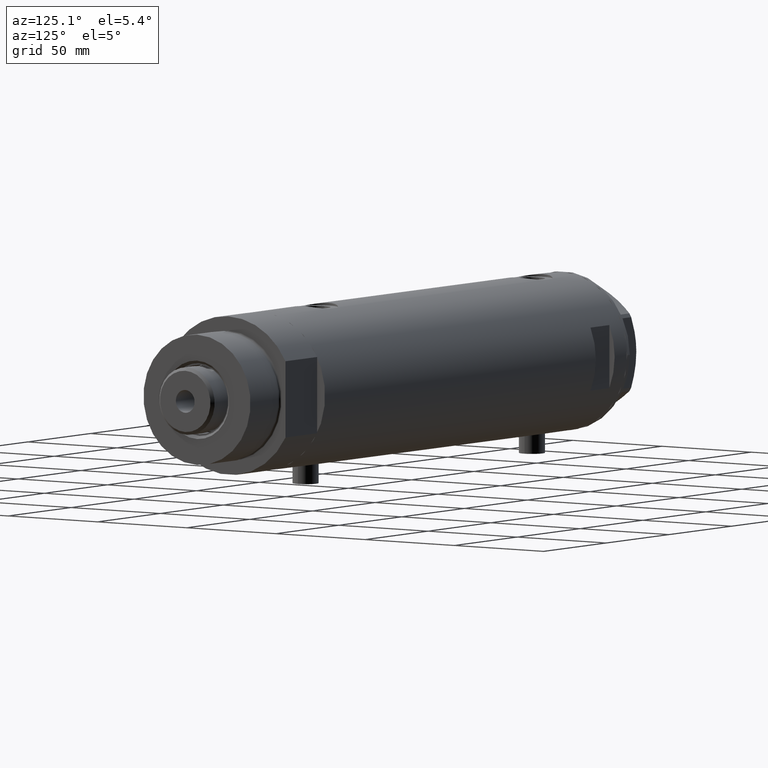
[diagram: clean part render]
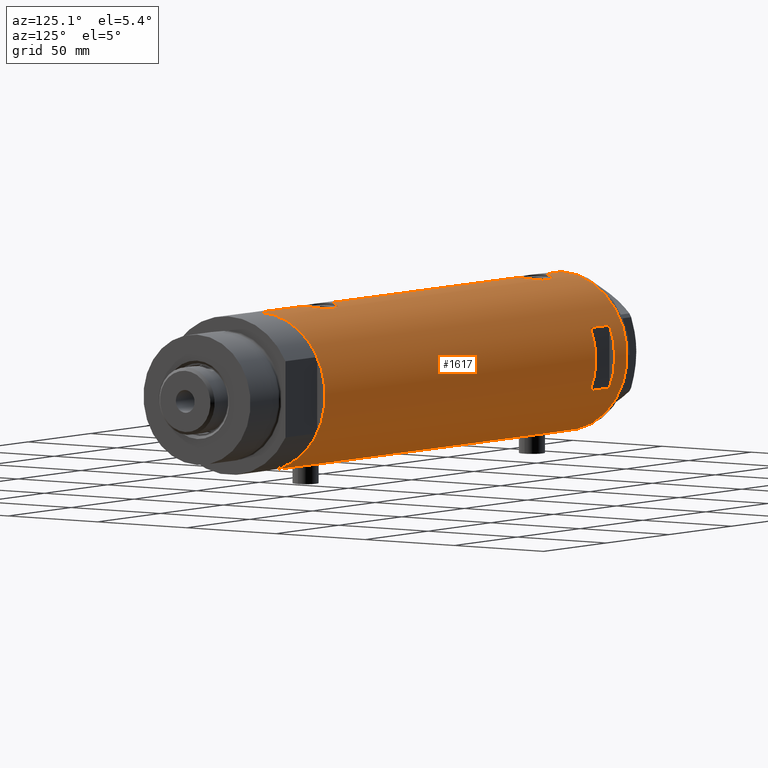
[diagram: same view with one face highlighted and labeled with its STEP entity id]
A machine part, auxiliary view. The second image highlights one B-rep face of the part: STEP entity #1617.
In plain terms, the highlighted cylindrical surface (partial cylindrical patch) has radius 36.5 mm, axis along (-1, -0, 0).
Its self-contained STEP definition (entity closure, byte-faithful):
#4 = CARTESIAN_POINT ( 'NONE',  ( 36.41717583764486932, 2.469534783404761402, 105.0934801117567190 ) ) ;
#6 = CARTESIAN_POINT ( 'NONE',  ( 36.18948008481302026, 4.772042575486208804, -84.40177631243157919 ) ) ;
#7 = CARTESIAN_POINT ( 'NONE',  ( 36.45853166336080875, 1.985123042546145022, 85.54837329582265681 ) ) ;
#16 = EDGE_CURVE ( 'NONE', #847, #2905, #1963, .T. ) ;
#18 = CARTESIAN_POINT ( 'NONE',  ( -35.99700617875953412, 6.038972911021586398, 98.02333185798320869 ) ) ;
#40 = VECTOR ( 'NONE', #2554, 1000.000000000000000 ) ;
#70 = CARTESIAN_POINT ( 'NONE',  ( -35.96088929326157313, 6.250155299092687855, 95.99389505236757714 ) ) ;
#73 = FACE_OUTER_BOUND ( 'NONE', #1222, .T. ) ;
#82 = CARTESIAN_POINT ( 'NONE',  ( 35.79766710091575987, 7.135341284989891619, 88.37649479439097888 ) ) ;
#100 = CARTESIAN_POINT ( 'NONE',  ( 36.34070350304396868, 3.414301401755543974, 85.99763782624094688 ) ) ;
#122 = CARTESIAN_POINT ( 'NONE',  ( -35.96094343308265451, 6.249843792257633091, -83.68912889655432252 ) ) ;
#136 = DIRECTION ( 'NONE',  ( 0.000000000000000000, 0.000000000000000000, 1.000000000000000000 ) ) ;
#140 = ORIENTED_EDGE ( 'NONE', *, *, #2586, .T. ) ;
#150 = CARTESIAN_POINT ( 'NONE',  ( -36.01679413914729366, 5.919813138266330377, -82.08500308952964986 ) ) ;
#172 = DIRECTION ( 'NONE',  ( 0.000000000000000000, 1.000000000000000000, -4.562560375171875891E-15 ) ) ;
#177 = VERTEX_POINT ( 'NONE', #1307 ) ;
#178 = CARTESIAN_POINT ( 'NONE',  ( 0.000000000000000000, 0.000000000000000000, 120.4000000000000057 ) ) ;
#182 = VERTEX_POINT ( 'NONE', #3039 ) ;
#251 = CARTESIAN_POINT ( 'NONE',  ( 35.29999999999999716, 9.282241108697837362, -79.32021504754763441 ) ) ;
#284 = CARTESIAN_POINT ( 'NONE',  ( 36.49999999999999289, 0.4961820988516178477, -65.59999999999999432 ) ) ;
#310 = CARTESIAN_POINT ( 'NONE',  ( 35.72794581931695745, 7.469526493268205058, -68.94660203271739363 ) ) ;
#316 = CARTESIAN_POINT ( 'NONE',  ( 35.29999999999999716, 9.282241108697837362, -71.87978495245236843 ) ) ;
#324 = EDGE_CURVE ( 'NONE', #177, #1946, #3851, .T. ) ;
#334 = CARTESIAN_POINT ( 'NONE',  ( -36.30200038006936580, 3.811959488093743520, 101.3697210483601197 ) ) ;
#357 = CARTESIAN_POINT ( 'NONE',  ( -36.50000000000000000, 1.603939656238031057E-15, 102.6500000000000199 ) ) ;
#367 = LINE ( 'NONE', #3589, #3349 ) ;
#387 = CARTESIAN_POINT ( 'NONE',  ( 36.34070350304396868, 3.414301401755543974, -85.00236217375905312 ) ) ;
#398 = CARTESIAN_POINT ( 'NONE',  ( -36.40902375114221456, 2.582415566883930591, 90.70478308530314848 ) ) ;
#468 = DIRECTION ( 'NONE',  ( 1.000000000000000000, 0.000000000000000000, 0.000000000000000000 ) ) ;
#479 = CARTESIAN_POINT ( 'NONE',  ( -36.01524716445113938, 5.931039972055515364, -86.11330731864657650 ) ) ;
#493 = CARTESIAN_POINT ( 'NONE',  ( 0.000000000000000000, 0.000000000000000000, -120.4000000000000057 ) ) ;
#532 = CARTESIAN_POINT ( 'NONE',  ( -36.44628644024909647, 2.015372769639941275, -90.03028128013588116 ) ) ;
#555 = CARTESIAN_POINT ( 'NONE',  ( -36.30181775639987052, 3.813582387016785091, -89.06836057574435017 ) ) ;
#595 = CARTESIAN_POINT ( 'NONE',  ( 35.39804469700249001, 8.909380959553011792, -70.94946835517158945 ) ) ;
#616 = CARTESIAN_POINT ( 'NONE',  ( 36.18937351723702278, 4.773052864917646687, -66.79864006881156513 ) ) ;
#643 = CARTESIAN_POINT ( 'NONE',  ( 36.50000000000000000, 0.000000000000000000, 120.4000000000000057 ) ) ;
#668 = AXIS2_PLACEMENT_3D ( 'NONE', #962, #1333, #172 ) ;
#672 = VECTOR ( 'NONE', #1323, 1000.000000000000000 ) ;
#678 = VERTEX_POINT ( 'NONE', #2313 ) ;
#689 = CARTESIAN_POINT ( 'NONE',  ( -36.50000000000000000, 0.4137727629436737664, 102.6500000000000057 ) ) ;
#705 = VECTOR ( 'NONE', #1695, 1000.000000000000000 ) ;
#707 = CARTESIAN_POINT ( 'NONE',  ( -36.05296344941216091, 5.695624845616832133, 93.81845143463246472 ) ) ;
#718 = VECTOR ( 'NONE', #3251, 1000.000000000000000 ) ;
#724 = CARTESIAN_POINT ( 'NONE',  ( 36.50000000000000000, 0.000000000000000000, -85.59999999999999432 ) ) ;
#733 = CARTESIAN_POINT ( 'NONE',  ( -36.47290054070997201, 1.420408912806973678, 102.4898698166001623 ) ) ;
#738 = LINE ( 'NONE', #2564, #1984 ) ;
#750 = CARTESIAN_POINT ( 'NONE',  ( 35.59366931936805400, 8.089554397885871495, 89.50072680912188616 ) ) ;
#758 = CARTESIAN_POINT ( 'NONE',  ( -36.43371204571226230, 2.206934156026287841, 102.2509728167099752 ) ) ;
#779 = CARTESIAN_POINT ( 'NONE',  ( -35.98846897517730525, 6.089479646546502423, 97.82234891546525546 ) ) ;
#783 = CARTESIAN_POINT ( 'NONE',  ( 0.000000000000000000, 0.000000000000000000, -120.4000000000000057 ) ) ;
#784 = CARTESIAN_POINT ( 'NONE',  ( -36.50000000000000000, 0.4137727629436737664, -77.84999999999999432 ) ) ;
#802 = EDGE_CURVE ( 'NONE', #1946, #1532, #3210, .T. ) ;
#807 = EDGE_CURVE ( 'NONE', #3520, #4523, #2335, .T. ) ;
#811 = AXIS2_PLACEMENT_3D ( 'NONE', #783, #2999, #2608 ) ;
#814 = ORIENTED_EDGE ( 'NONE', *, *, #2968, .F. ) ;
#820 = CARTESIAN_POINT ( 'NONE',  ( -36.50000000000000000, 4.469960493350315609E-15, 90.15000000000000568 ) ) ;
#835 = CARTESIAN_POINT ( 'NONE',  ( -36.11199073531170001, 5.309184630646994307, -80.79587159233167881 ) ) ;
#847 = VERTEX_POINT ( 'NONE', #1021 ) ;
#861 = CARTESIAN_POINT ( 'NONE',  ( -36.46598788992680085, 1.625721481788714895, -90.14872046713837506 ) ) ;
#889 = CARTESIAN_POINT ( 'NONE',  ( -36.30200038006936580, 3.811959488093743520, -79.13027895163997982 ) ) ;
#935 = B_SPLINE_CURVE_WITH_KNOTS ( 'NONE', 3,
 ( #4105, #784, #2272, #2323, #3174, #1597, #4208, #4161, #4629, #889, #3430, #1699, #1202, #835, #938, #3878, #2013, #150, #3486, #3508, #1310, #122, #2686, #3072, #3798, #479, #1958, #4552, #1230, #4184, #4574, #3901, #3120, #555, #2376, #2709, #2426, #3098, #532, #861, #2786, #1623, #4238 ),
 .UNSPECIFIED., .F., .F.,
 ( 4, 2, 2, 2, 2, 2, 2, 2, 1, 2, 2, 2, 2, 2, 2, 2, 2, 2, 2, 2, 2, 4 ),
 ( 1.558294008431693624E-18, 0.001223527801214140684, 0.001835291701821213954, 0.002447055602428288307, 0.003670583403642434413, 0.004894111204856580084, 0.006117639006070725756, 0.006729402906677815072, 0.007341166807284903520, 0.007952930707891993703, 0.008564694608499082151, 0.009788222409713260783, 0.01101175021092743941, 0.01223527801214161631, 0.01284704191274868568, 0.01345880581335575504, 0.01468233361456989725, 0.01590586141578403945, 0.01651762531639110881, 0.01712938921699818165, 0.01835291701821230650, 0.01957644481942643136 ),
 .UNSPECIFIED. ) ;
#938 = CARTESIAN_POINT ( 'NONE',  ( -36.09617453667821252, 5.415318599347967776, -80.97293357327090746 ) ) ;
#942 = EDGE_LOOP ( 'NONE', ( #2305, #2457, #3803, #1172 ) ) ;
#952 = CARTESIAN_POINT ( 'NONE',  ( 35.29999999999999716, 9.282241108697837362, -71.87978495245236843 ) ) ;
#962 = CARTESIAN_POINT ( 'NONE',  ( 0.000000000000000000, 0.000000000000000000, 95.40000000000014779 ) ) ;
#1004 = B_SPLINE_CURVE_WITH_KNOTS ( 'NONE', 3,
 ( #724, #2210, #2146, #1415, #387, #3689, #1847, #6, #1827, #2954, #4428, #1783, #1113, #1868, #1503, #2983, #4457, #2887 ),
 .UNSPECIFIED., .F., .F.,
 ( 4, 2, 2, 2, 2, 2, 2, 2, 4 ),
 ( 1.734723475976807094E-18, 0.002973648994175672518, 0.003717061242719596394, 0.004460473491263520704, 0.005947297988351386670, 0.007434122485439251769, 0.008920946982527117736, 0.01040777147961498283, 0.01189459597670284793 ),
 .UNSPECIFIED. ) ;
#1010 = CARTESIAN_POINT ( 'NONE',  ( 36.50000000000000000, 0.000000000000000000, -120.4000000000000057 ) ) ;
#1021 = CARTESIAN_POINT ( 'NONE',  ( -36.50000000000000000, 1.603939656238031057E-15, 102.6500000000000199 ) ) ;
#1077 = CARTESIAN_POINT ( 'NONE',  ( 36.50000000000000000, 0.000000000000000000, -120.4000000000000057 ) ) ;
#1088 = CARTESIAN_POINT ( 'NONE',  ( 36.29611582693038940, 3.878758190381173421, 104.6304498909955072 ) ) ;
#1096 = CARTESIAN_POINT ( 'NONE',  ( -36.11199073531170001, 5.309184630646994307, 99.70412840766836382 ) ) ;
#1097 = EDGE_CURVE ( 'NONE', #678, #1453, #1004, .T. ) ;
#1113 = CARTESIAN_POINT ( 'NONE',  ( 35.72860827204725354, 7.471059959301281417, -82.26525150474411419 ) ) ;
#1124 = CARTESIAN_POINT ( 'NONE',  ( -36.16083474549355259, 4.969527450313384165, 92.58794680877254279 ) ) ;
#1139 = CARTESIAN_POINT ( 'NONE',  ( 35.72860827204725354, 7.471059959301281417, 88.73474849525594266 ) ) ;
#1169 = CARTESIAN_POINT ( 'NONE',  ( -36.35033317675380005, 3.306376218664579536, 91.09229280583950583 ) ) ;
#1172 = ORIENTED_EDGE ( 'NONE', *, *, #324, .F. ) ;
#1202 = CARTESIAN_POINT ( 'NONE',  ( -36.16126303108062956, 4.966520032693302333, -80.28358772254716769 ) ) ;
#1222 = EDGE_LOOP ( 'NONE', ( #140, #1647, #1970, #4274, #1348, #2159, #4466, #4021, #1801, #4530, #814, #3866, #4079, #4479, #4146, #2289 ) ) ;
#1230 = CARTESIAN_POINT ( 'NONE',  ( -36.09643313249890184, 5.413601294342275771, -87.23007773391852027 ) ) ;
#1254 = CIRCLE ( 'NONE', #1807, 36.50000000000000000 ) ;
#1307 = CARTESIAN_POINT ( 'NONE',  ( -14.49137674618942739, 33.50000000000000000, 110.3999999999999915 ) ) ;
#1310 = CARTESIAN_POINT ( 'NONE',  ( -35.96793274302675059, 6.210029014836887740, -83.28305762320685801 ) ) ;
#1323 = DIRECTION ( 'NONE',  ( -0.000000000000000000, -0.000000000000000000, -1.000000000000000000 ) ) ;
#1333 = DIRECTION ( 'NONE',  ( 0.000000000000000000, 4.625929269271492422E-15, 1.000000000000000000 ) ) ;
#1337 = DIRECTION ( 'NONE',  ( 0.000000000000000000, 0.000000000000000000, 1.000000000000000000 ) ) ;
#1348 = ORIENTED_EDGE ( 'NONE', *, *, #16, .F. ) ;
#1367 = CARTESIAN_POINT ( 'NONE',  ( -14.49137674618942739, 33.50000000000000000, -120.4000000000000057 ) ) ;
#1410 = CARTESIAN_POINT ( 'NONE',  ( 36.50000000000000000, 4.344614706140975428E-19, 105.4000000000000057 ) ) ;
#1414 = EDGE_CURVE ( 'NONE', #2470, #3387, #2455, .T. ) ;
#1415 = CARTESIAN_POINT ( 'NONE',  ( 36.36225053217120973, 3.177096004138049601, -85.08516024475976280 ) ) ;
#1437 = CARTESIAN_POINT ( 'NONE',  ( 35.52347503888660896, 8.410566959990466884, 100.8995396725934057 ) ) ;
#1447 = LINE ( 'NONE', #1077, #40 ) ;
#1450 = CARTESIAN_POINT ( 'NONE',  ( -35.96793274302675059, 6.210029014836887740, 97.21694237679319883 ) ) ;
#1453 = VERTEX_POINT ( 'NONE', #251 ) ;
#1466 = CARTESIAN_POINT ( 'NONE',  ( -36.49292802938585822, 0.8230716655928924652, 90.19093061246485377 ) ) ;
#1478 = CARTESIAN_POINT ( 'NONE',  ( 36.00287854058830561, 6.017835360302999703, 87.39811882818277411 ) ) ;
#1483 = VECTOR ( 'NONE', #136, 1000.000000000000000 ) ;
#1488 = CARTESIAN_POINT ( 'NONE',  ( -35.96805604460922723, 6.209309709790234777, 95.57887241731832262 ) ) ;
#1503 = CARTESIAN_POINT ( 'NONE',  ( 35.52737867031126484, 8.373910777960906771, -81.08860356717065088 ) ) ;
#1517 = B_SPLINE_CURVE_WITH_KNOTS ( 'NONE', 3,
 ( #1534, #4142, #7, #3411, #100, #3808, #2594, #3008, #4112, #1478, #2254, #82, #1139, #750, #1577, #2638, #3055, #2234 ),
 .UNSPECIFIED., .F., .F.,
 ( 4, 2, 2, 2, 2, 2, 2, 2, 4 ),
 ( 1.734723475976807094E-18, 0.002973648994175672518, 0.003717061242719596394, 0.004460473491263520704, 0.005947297988351386670, 0.007434122485439251769, 0.008920946982527117736, 0.01040777147961498283, 0.01189459597670284793 ),
 .UNSPECIFIED. ) ;
#1532 = VERTEX_POINT ( 'NONE', #3655 ) ;
#1534 = CARTESIAN_POINT ( 'NONE',  ( 36.50000000000000000, 0.000000000000000000, 85.40000000000001990 ) ) ;
#1543 = CARTESIAN_POINT ( 'NONE',  ( -36.09643313249890184, 5.413601294342275771, 93.26992226608146552 ) ) ;
#1558 = EDGE_CURVE ( 'NONE', #2668, #2905, #738, .T. ) ;
#1577 = CARTESIAN_POINT ( 'NONE',  ( 35.52737867031126484, 8.373910777960906771, 89.91139643282933491 ) ) ;
#1583 = CARTESIAN_POINT ( 'NONE',  ( -36.50000000000000000, 4.469960816887838430E-15, -120.4000000000000057 ) ) ;
#1597 = CARTESIAN_POINT ( 'NONE',  ( -36.44504802628534179, 2.011764947064737630, -78.17906355091480464 ) ) ;
#1617 = ADVANCED_FACE ( 'NONE', ( #2655, #73 ), #1957, .T. ) ;
#1623 = CARTESIAN_POINT ( 'NONE',  ( -36.49999999999999289, 0.4083036190459308212, -90.34999999999998010 ) ) ;
#1647 = ORIENTED_EDGE ( 'NONE', *, *, #3331, .T. ) ;
#1651 = CARTESIAN_POINT ( 'NONE',  ( 14.49137674618942739, 33.50000000000000000, 110.3999999999999915 ) ) ;
#1688 = CARTESIAN_POINT ( 'NONE',  ( 36.40008489419980720, 2.709263960908029123, -65.97081895403607632 ) ) ;
#1695 = DIRECTION ( 'NONE',  ( 0.000000000000000000, 0.000000000000000000, 1.000000000000000000 ) ) ;
#1699 = CARTESIAN_POINT ( 'NONE',  ( -36.19624103943463922, 4.708090268046848159, -79.96938778553864324 ) ) ;
#1754 = CARTESIAN_POINT ( 'NONE',  ( 35.29999999999999716, 9.282241108697837362, -120.4000000000000057 ) ) ;
#1766 = AXIS2_PLACEMENT_3D ( 'NONE', #4695, #4330, #2623 ) ;
#1772 = EDGE_CURVE ( 'NONE', #1532, #182, #2598, .T. ) ;
#1783 = CARTESIAN_POINT ( 'NONE',  ( 35.79766710091575987, 7.135341284989891619, -82.62350520560903533 ) ) ;
#1785 = CARTESIAN_POINT ( 'NONE',  ( 35.79715675463678792, 7.130463293899340194, -68.58444415894004464 ) ) ;
#1801 = ORIENTED_EDGE ( 'NONE', *, *, #4752, .F. ) ;
#1807 = AXIS2_PLACEMENT_3D ( 'NONE', #493, #3032, #468 ) ;
#1827 = CARTESIAN_POINT ( 'NONE',  ( 36.13018480315372472, 5.199168368309159405, -84.15646498208049309 ) ) ;
#1837 = CARTESIAN_POINT ( 'NONE',  ( -36.06675137892952421, 5.607935153446978127, 99.16681826008760936 ) ) ;
#1846 = CARTESIAN_POINT ( 'NONE',  ( 36.18937351723702278, 4.773052864917646687, 104.2013599311884064 ) ) ;
#1847 = CARTESIAN_POINT ( 'NONE',  ( 36.26917563968160607, 4.104523505324181087, -84.72215988367473471 ) ) ;
#1857 = CARTESIAN_POINT ( 'NONE',  ( -36.49297130294515057, 0.8204796224394291793, 102.6093169221773564 ) ) ;
#1868 = CARTESIAN_POINT ( 'NONE',  ( 35.59366931936805400, 8.089554397885871495, -81.49927319087814226 ) ) ;
#1870 = CARTESIAN_POINT ( 'NONE',  ( 35.29999999999999716, 9.282241108697837362, 99.12021504754764578 ) ) ;
#1934 = CARTESIAN_POINT ( 'NONE',  ( -36.50000000000000000, 4.469960816887838430E-15, -120.4000000000000057 ) ) ;
#1946 = VERTEX_POINT ( 'NONE', #1651 ) ;
#1947 = LINE ( 'NONE', #1583, #1483 ) ;
#1957 = CYLINDRICAL_SURFACE ( 'NONE', #811, 36.50000000000000000 ) ;
#1958 = CARTESIAN_POINT ( 'NONE',  ( -36.05296344941216091, 5.695624845616832133, -86.68154856536754949 ) ) ;
#1963 = B_SPLINE_CURVE_WITH_KNOTS ( 'NONE', 3,
 ( #357, #689, #1857, #733, #2995, #2175, #758, #3378, #4057, #334, #3330, #2966, #3290, #1096, #3721, #1837, #4765, #3744, #18, #779, #1450, #2222, #70, #1488, #4399, #4443, #707, #2243, #1543, #2628, #1124, #3016, #3312, #4492, #1169, #2649, #2604, #398, #4440, #2923, #1466, #4468, #2942 ),
 .UNSPECIFIED., .F., .F.,
 ( 4, 2, 2, 2, 2, 2, 2, 2, 1, 2, 2, 2, 2, 2, 2, 2, 2, 2, 2, 2, 2, 4 ),
 ( 1.558294008431693624E-18, 0.001223527801214140684, 0.001835291701821213954, 0.002447055602428288307, 0.003670583403642434413, 0.004894111204856580084, 0.006117639006070725756, 0.006729402906677815072, 0.007341166807284903520, 0.007952930707891993703, 0.008564694608499082151, 0.009788222409713260783, 0.01101175021092743941, 0.01223527801214161631, 0.01284704191274868568, 0.01345880581335575504, 0.01468233361456989725, 0.01590586141578403945, 0.01651762531639110881, 0.01712938921699818165, 0.01835291701821230650, 0.01957644481942643136 ),
 .UNSPECIFIED. ) ;
#1970 = ORIENTED_EDGE ( 'NONE', *, *, #3414, .F. ) ;
#1984 = VECTOR ( 'NONE', #4040, 1000.000000000000000 ) ;
#2013 = CARTESIAN_POINT ( 'NONE',  ( -36.03936508729894683, 5.782103729777505308, -81.70129467396205314 ) ) ;
#2056 = VECTOR ( 'NONE', #3222, 1000.000000000000000 ) ;
#2146 = CARTESIAN_POINT ( 'NONE',  ( 36.45853166336080875, 1.985123042546145022, -85.45162670417735740 ) ) ;
#2149 = CARTESIAN_POINT ( 'NONE',  ( 35.93435287561198521, 6.411571491280768420, -67.91011355077158385 ) ) ;
#2159 = ORIENTED_EDGE ( 'NONE', *, *, #2588, .T. ) ;
#2165 = DIRECTION ( 'NONE',  ( 0.000000000000000000, 0.000000000000000000, 1.000000000000000000 ) ) ;
#2175 = CARTESIAN_POINT ( 'NONE',  ( -36.44504802628534179, 2.011764947064737630, 102.3209364490851954 ) ) ;
#2185 = CARTESIAN_POINT ( 'NONE',  ( 35.93435287561198521, 6.411571491280768420, 103.0898864492284304 ) ) ;
#2210 = CARTESIAN_POINT ( 'NONE',  ( 36.50000000000000711, 1.005842003469123336, -85.59999999999999432 ) ) ;
#2222 = CARTESIAN_POINT ( 'NONE',  ( -35.96094343308265451, 6.249843792257633091, 96.81087110344570590 ) ) ;
#2234 = CARTESIAN_POINT ( 'NONE',  ( 35.29999999999999716, 9.282241108697837362, 91.67978495245237980 ) ) ;
#2243 = CARTESIAN_POINT ( 'NONE',  ( -36.06690560274405044, 5.606949625760674571, 93.63114076041070177 ) ) ;
#2254 = CARTESIAN_POINT ( 'NONE',  ( 35.93456089024232369, 6.410413305453381838, 87.70914036795856816 ) ) ;
#2272 = CARTESIAN_POINT ( 'NONE',  ( -36.49297130294515057, 0.8204796224394291793, -77.89068307782268619 ) ) ;
#2289 = ORIENTED_EDGE ( 'NONE', *, *, #2423, .F. ) ;
#2305 = ORIENTED_EDGE ( 'NONE', *, *, #3132, .F. ) ;
#2313 = CARTESIAN_POINT ( 'NONE',  ( 36.50000000000000000, 0.000000000000000000, -85.59999999999999432 ) ) ;
#2323 = CARTESIAN_POINT ( 'NONE',  ( -36.47290054070997201, 1.420408912806973678, -78.01013018339985194 ) ) ;
#2335 = B_SPLINE_CURVE_WITH_KNOTS ( 'NONE', 3,
 ( #952, #595, #2849, #4327, #310, #1785, #3259, #2149, #4736, #3623, #616, #4270, #3938, #1688, #3235, #3184, #4248, #2499, #284, #4296 ),
 .UNSPECIFIED., .F., .F.,
 ( 4, 2, 2, 2, 2, 2, 2, 2, 2, 4 ),
 ( 0.000000000000000000, 0.002977391289382919342, 0.003721739111728640179, 0.004466086934074362316, 0.005954782578765775367, 0.007443478223457188417, 0.008932173868148601467, 0.009676521690494316666, 0.01042086951284003013, 0.01190956515753145012 ),
 .UNSPECIFIED. ) ;
#2376 = CARTESIAN_POINT ( 'NONE',  ( -36.35033317675380005, 3.306376218664579536, -89.40770719416052259 ) ) ;
#2423 = EDGE_CURVE ( 'NONE', #2489, #678, #4668, .T. ) ;
#2426 = CARTESIAN_POINT ( 'NONE',  ( -36.39522946636253664, 2.769519034821242176, -89.70663923731271439 ) ) ;
#2455 = CIRCLE ( 'NONE', #3450, 36.50000000000000000 ) ;
#2457 = ORIENTED_EDGE ( 'NONE', *, *, #1772, .F. ) ;
#2470 = VERTEX_POINT ( 'NONE', #643 ) ;
#2489 = VERTEX_POINT ( 'NONE', #2551 ) ;
#2499 = CARTESIAN_POINT ( 'NONE',  ( 36.48988646280794512, 0.9921857666168139023, -65.63671884865574668 ) ) ;
#2546 = CARTESIAN_POINT ( 'NONE',  ( 35.79715675463678792, 7.130463293899340194, 102.4155558410599696 ) ) ;
#2551 = CARTESIAN_POINT ( 'NONE',  ( 36.50000000000000000, 0.000000000000000000, -120.4000000000000057 ) ) ;
#2553 = B_SPLINE_CURVE_WITH_KNOTS ( 'NONE', 3,
 ( #4006, #3255, #1437, #2906, #4388, #2546, #4025, #2185, #4732, #3662, #1846, #1088, #2567, #3320, #4, #4109, #2690, #2613, #3708, #3388 ),
 .UNSPECIFIED., .F., .F.,
 ( 4, 2, 2, 2, 2, 2, 2, 2, 2, 4 ),
 ( 0.000000000000000000, 0.002977391289382919342, 0.003721739111728640179, 0.004466086934074362316, 0.005954782578765775367, 0.007443478223457188417, 0.008932173868148601467, 0.009676521690494316666, 0.01042086951284003013, 0.01190956515753145012 ),
 .UNSPECIFIED. ) ;
#2554 = DIRECTION ( 'NONE',  ( 0.000000000000000000, 0.000000000000000000, 1.000000000000000000 ) ) ;
#2564 = CARTESIAN_POINT ( 'NONE',  ( -36.50000000000000000, 4.469960816887838430E-15, -120.4000000000000057 ) ) ;
#2567 = CARTESIAN_POINT ( 'NONE',  ( 36.34264078466112124, 3.418717136061403927, 104.8104903404075543 ) ) ;
#2586 = EDGE_CURVE ( 'NONE', #2489, #3267, #1254, .T. ) ;
#2588 = EDGE_CURVE ( 'NONE', #847, #3387, #1947, .T. ) ;
#2594 = CARTESIAN_POINT ( 'NONE',  ( 36.26917563968160607, 4.104523505324181087, 86.27784011632525107 ) ) ;
#2598 = CIRCLE ( 'NONE', #668, 36.50000000000000000 ) ;
#2604 = CARTESIAN_POINT ( 'NONE',  ( -36.39522946636253664, 2.769519034821242176, 90.79336076268728561 ) ) ;
#2608 = DIRECTION ( 'NONE',  ( 1.000000000000000000, 0.000000000000000000, 0.000000000000000000 ) ) ;
#2613 = CARTESIAN_POINT ( 'NONE',  ( 36.48988646280794512, 0.9921857666168139023, 105.3632811513442249 ) ) ;
#2623 = DIRECTION ( 'NONE',  ( 1.000000000000000000, 1.776356839400250465E-15, 0.000000000000000000 ) ) ;
#2628 = CARTESIAN_POINT ( 'NONE',  ( -36.11206433103227198, 5.308658295084048184, 93.09515351959024088 ) ) ;
#2638 = CARTESIAN_POINT ( 'NONE',  ( 35.40502660484481368, 8.876998817796907915, 90.76901275928764790 ) ) ;
#2649 = CARTESIAN_POINT ( 'NONE',  ( -36.36587679577595367, 3.131448301962863834, 90.98717534426380382 ) ) ;
#2655 = FACE_BOUND ( 'NONE', #942, .T. ) ;
#2668 = VERTEX_POINT ( 'NONE', #2750 ) ;
#2686 = CARTESIAN_POINT ( 'NONE',  ( -35.96088929326157313, 6.250155299092687855, -84.50610494763246550 ) ) ;
#2690 = CARTESIAN_POINT ( 'NONE',  ( 36.45954139109321801, 1.735915671103595681, 105.2513678114701179 ) ) ;
#2709 = CARTESIAN_POINT ( 'NONE',  ( -36.36587679577595367, 3.131448301962863834, -89.51282465573618197 ) ) ;
#2750 = CARTESIAN_POINT ( 'NONE',  ( -36.50000000000000000, 1.603939656238031057E-15, -77.85000000000000853 ) ) ;
#2786 = CARTESIAN_POINT ( 'NONE',  ( -36.49292802938585822, 0.8230716655928924652, -90.30906938753511781 ) ) ;
#2849 = CARTESIAN_POINT ( 'NONE',  ( 35.52347503888660896, 8.410566959990466884, -70.10046032740659427 ) ) ;
#2887 = CARTESIAN_POINT ( 'NONE',  ( 35.29999999999999716, 9.282241108697837362, -79.32021504754763441 ) ) ;
#2905 = VERTEX_POINT ( 'NONE', #820 ) ;
#2906 = CARTESIAN_POINT ( 'NONE',  ( 35.69321149401851301, 7.633476302278308978, 101.8646307216643976 ) ) ;
#2923 = CARTESIAN_POINT ( 'NONE',  ( -36.46598788992680085, 1.625721481788714895, 90.35127953286163915 ) ) ;
#2942 = CARTESIAN_POINT ( 'NONE',  ( -36.50000000000000000, 4.469960493350315609E-15, 90.15000000000000568 ) ) ;
#2947 = DIRECTION ( 'NONE',  ( 0.000000000000000000, 0.000000000000000000, 1.000000000000000000 ) ) ;
#2954 = CARTESIAN_POINT ( 'NONE',  ( 36.00287854058830561, 6.017835360302999703, -83.60188117181724010 ) ) ;
#2966 = CARTESIAN_POINT ( 'NONE',  ( -36.19624103943463922, 4.708090268046848159, 100.5306122144613994 ) ) ;
#2968 = EDGE_CURVE ( 'NONE', #3402, #3956, #1517, .T. ) ;
#2983 = CARTESIAN_POINT ( 'NONE',  ( 35.40502660484481368, 8.876998817796907915, -80.23098724071233789 ) ) ;
#2995 = CARTESIAN_POINT ( 'NONE',  ( -36.46462099658055678, 1.618684470865507041, 102.4402439702484742 ) ) ;
#2999 = DIRECTION ( 'NONE',  ( 0.000000000000000000, 0.000000000000000000, 1.000000000000000000 ) ) ;
#3008 = CARTESIAN_POINT ( 'NONE',  ( 36.18948008481302026, 4.772042575486208804, 86.59822368756844924 ) ) ;
#3016 = CARTESIAN_POINT ( 'NONE',  ( -36.19597718496778072, 4.710322426433902976, 92.27148389237986237 ) ) ;
#3032 = DIRECTION ( 'NONE',  ( 0.000000000000000000, 0.000000000000000000, 1.000000000000000000 ) ) ;
#3039 = CARTESIAN_POINT ( 'NONE',  ( -14.49137674618942917, 33.50000000000000000, 95.40000000000000568 ) ) ;
#3055 = CARTESIAN_POINT ( 'NONE',  ( 35.34894515018992678, 9.096104616284845790, 91.21535916533457566 ) ) ;
#3072 = CARTESIAN_POINT ( 'NONE',  ( -35.96805604460922723, 6.209309709790234777, -84.92112758268174844 ) ) ;
#3098 = CARTESIAN_POINT ( 'NONE',  ( -36.40902375114221456, 2.582415566883930591, -89.79521691469687994 ) ) ;
#3120 = CARTESIAN_POINT ( 'NONE',  ( -36.26695135241003953, 4.128455078791301247, -88.81037591644739848 ) ) ;
#3129 = VECTOR ( 'NONE', #2947, 1000.000000000000000 ) ;
#3132 = EDGE_CURVE ( 'NONE', #182, #177, #4361, .T. ) ;
#3158 = VERTEX_POINT ( 'NONE', #1410 ) ;
#3161 = CARTESIAN_POINT ( 'NONE',  ( 36.50000000000000000, 4.344614706140975428E-19, -65.60000000000000853 ) ) ;
#3174 = CARTESIAN_POINT ( 'NONE',  ( -36.46462099658055678, 1.618684470865507041, -78.05975602975156846 ) ) ;
#3184 = CARTESIAN_POINT ( 'NONE',  ( 36.44688397185920081, 1.983417953489138741, -65.79550042351749539 ) ) ;
#3198 = LINE ( 'NONE', #1010, #2056 ) ;
#3210 = LINE ( 'NONE', #4644, #672 ) ;
#3222 = DIRECTION ( 'NONE',  ( 0.000000000000000000, 0.000000000000000000, 1.000000000000000000 ) ) ;
#3235 = CARTESIAN_POINT ( 'NONE',  ( 36.41717583764486932, 2.469534783404761402, -65.90651988824329521 ) ) ;
#3244 = EDGE_CURVE ( 'NONE', #4508, #3956, #3586, .T. ) ;
#3251 = DIRECTION ( 'NONE',  ( -0.000000000000000000, -0.000000000000000000, -1.000000000000000000 ) ) ;
#3255 = CARTESIAN_POINT ( 'NONE',  ( 35.39804469700249001, 8.909380959553011792, 100.0505316448284532 ) ) ;
#3259 = CARTESIAN_POINT ( 'NONE',  ( 35.83170458557578542, 6.955065627744199119, -68.41058328087537177 ) ) ;
#3267 = VERTEX_POINT ( 'NONE', #4041 ) ;
#3290 = CARTESIAN_POINT ( 'NONE',  ( -36.16126303108062956, 4.966520032693302333, 100.2164122774528323 ) ) ;
#3298 = DIRECTION ( 'NONE',  ( -0.000000000000000000, -0.000000000000000000, -1.000000000000000000 ) ) ;
#3312 = CARTESIAN_POINT ( 'NONE',  ( -36.26695135241003953, 4.128455078791301247, 91.68962408355257310 ) ) ;
#3320 = CARTESIAN_POINT ( 'NONE',  ( 36.40008489419980720, 2.709263960908029123, 105.0291810459639095 ) ) ;
#3330 = CARTESIAN_POINT ( 'NONE',  ( -36.26643311080166399, 4.132772529026635944, 101.1061940526988536 ) ) ;
#3331 = EDGE_CURVE ( 'NONE', #3267, #4292, #4496, .T. ) ;
#3335 = CARTESIAN_POINT ( 'NONE',  ( 36.50000000000000000, 0.000000000000000000, 85.40000000000001990 ) ) ;
#3347 = CARTESIAN_POINT ( 'NONE',  ( 35.29999999999999716, 9.282241108697837362, 91.67978495245237980 ) ) ;
#3349 = VECTOR ( 'NONE', #3298, 1000.000000000000000 ) ;
#3378 = CARTESIAN_POINT ( 'NONE',  ( -36.39638105034455151, 2.774378062517171006, 102.0154333269910296 ) ) ;
#3387 = VERTEX_POINT ( 'NONE', #4472 ) ;
#3388 = CARTESIAN_POINT ( 'NONE',  ( 36.50000000000000000, 4.344614706140975428E-19, 105.4000000000000057 ) ) ;
#3402 = VERTEX_POINT ( 'NONE', #3335 ) ;
#3411 = CARTESIAN_POINT ( 'NONE',  ( 36.36225053217120973, 3.177096004138049601, 85.91483975524022298 ) ) ;
#3414 = EDGE_CURVE ( 'NONE', #2668, #4292, #935, .T. ) ;
#3430 = CARTESIAN_POINT ( 'NONE',  ( -36.26643311080166399, 4.132772529026635944, -79.39380594730118901 ) ) ;
#3450 = AXIS2_PLACEMENT_3D ( 'NONE', #178, #1337, #3952 ) ;
#3486 = CARTESIAN_POINT ( 'NONE',  ( -35.99700617875953412, 6.038972911021586398, -82.47666814201681973 ) ) ;
#3508 = CARTESIAN_POINT ( 'NONE',  ( -35.98846897517730525, 6.089479646546502423, -82.67765108453481560 ) ) ;
#3510 = EDGE_CURVE ( 'NONE', #3158, #2470, #3198, .T. ) ;
#3520 = VERTEX_POINT ( 'NONE', #316 ) ;
#3586 = LINE ( 'NONE', #1754, #718 ) ;
#3589 = CARTESIAN_POINT ( 'NONE',  ( 35.29999999999999716, 9.282241108697837362, -120.4000000000000057 ) ) ;
#3591 = VECTOR ( 'NONE', #2165, 1000.000000000000000 ) ;
#3623 = CARTESIAN_POINT ( 'NONE',  ( 36.12877841835537396, 5.208882251161925936, -67.04946835209707956 ) ) ;
#3655 = CARTESIAN_POINT ( 'NONE',  ( 14.49137674618942917, 33.50000000000000000, 95.40000000000000568 ) ) ;
#3662 = CARTESIAN_POINT ( 'NONE',  ( 36.12877841835537396, 5.208882251161925936, 103.9505316479029347 ) ) ;
#3689 = CARTESIAN_POINT ( 'NONE',  ( 36.29420020483473053, 3.877527130731370342, -84.82098974400292946 ) ) ;
#3708 = CARTESIAN_POINT ( 'NONE',  ( 36.49999999999999289, 0.4961820988516178477, 105.3999999999999915 ) ) ;
#3721 = CARTESIAN_POINT ( 'NONE',  ( -36.09617453667821252, 5.415318599347967776, 99.52706642672912096 ) ) ;
#3744 = CARTESIAN_POINT ( 'NONE',  ( -36.01679413914729366, 5.919813138266330377, 98.41499691047042120 ) ) ;
#3798 = CARTESIAN_POINT ( 'NONE',  ( -35.99530513653993324, 6.049346314076207598, -85.72332583035837672 ) ) ;
#3803 = ORIENTED_EDGE ( 'NONE', *, *, #802, .F. ) ;
#3808 = CARTESIAN_POINT ( 'NONE',  ( 36.29420020483473053, 3.877527130731370342, 86.17901025599708476 ) ) ;
#3848 = CARTESIAN_POINT ( 'NONE',  ( 36.50000000000000000, 0.000000000000000000, -120.4000000000000057 ) ) ;
#3851 = CIRCLE ( 'NONE', #1766, 36.50000000000000000 ) ;
#3866 = ORIENTED_EDGE ( 'NONE', *, *, #3993, .F. ) ;
#3878 = CARTESIAN_POINT ( 'NONE',  ( -36.06675137892952421, 5.607935153446978127, -81.33318173991246169 ) ) ;
#3901 = CARTESIAN_POINT ( 'NONE',  ( -36.19597718496778072, 4.710322426433902976, -88.22851610762016605 ) ) ;
#3938 = CARTESIAN_POINT ( 'NONE',  ( 36.34264078466112124, 3.418717136061403927, -66.18950965959250254 ) ) ;
#3952 = DIRECTION ( 'NONE',  ( 1.000000000000000000, 0.000000000000000000, 0.000000000000000000 ) ) ;
#3956 = VERTEX_POINT ( 'NONE', #3347 ) ;
#3993 = EDGE_CURVE ( 'NONE', #4523, #3402, #1447, .T. ) ;
#4006 = CARTESIAN_POINT ( 'NONE',  ( 35.29999999999999716, 9.282241108697837362, 99.12021504754764578 ) ) ;
#4021 = ORIENTED_EDGE ( 'NONE', *, *, #3510, .F. ) ;
#4025 = CARTESIAN_POINT ( 'NONE',  ( 35.83170458557578542, 6.955065627744199119, 102.5894167191246424 ) ) ;
#4040 = DIRECTION ( 'NONE',  ( 0.000000000000000000, 0.000000000000000000, 1.000000000000000000 ) ) ;
#4041 = CARTESIAN_POINT ( 'NONE',  ( -36.50000000000000000, 4.469960816887838430E-15, -120.4000000000000057 ) ) ;
#4057 = CARTESIAN_POINT ( 'NONE',  ( -36.36688032967140316, 3.133094607697482825, 101.8233643263751276 ) ) ;
#4079 = ORIENTED_EDGE ( 'NONE', *, *, #807, .F. ) ;
#4105 = CARTESIAN_POINT ( 'NONE',  ( -36.50000000000000000, 1.603939656238031057E-15, -77.85000000000000853 ) ) ;
#4109 = CARTESIAN_POINT ( 'NONE',  ( 36.44688397185920081, 1.983417953489138741, 105.2044995764825757 ) ) ;
#4112 = CARTESIAN_POINT ( 'NONE',  ( 36.13018480315372472, 5.199168368309159405, 86.84353501791949270 ) ) ;
#4142 = CARTESIAN_POINT ( 'NONE',  ( 36.50000000000000711, 1.005842003469123336, 85.40000000000003411 ) ) ;
#4146 = ORIENTED_EDGE ( 'NONE', *, *, #1097, .F. ) ;
#4161 = CARTESIAN_POINT ( 'NONE',  ( -36.39638105034455151, 2.774378062517171006, -78.48456667300897038 ) ) ;
#4184 = CARTESIAN_POINT ( 'NONE',  ( -36.11206433103227198, 5.308658295084048184, -87.40484648040978755 ) ) ;
#4208 = CARTESIAN_POINT ( 'NONE',  ( -36.43371204571226230, 2.206934156026287841, -78.24902718329002482 ) ) ;
#4238 = CARTESIAN_POINT ( 'NONE',  ( -36.50000000000000000, 4.469960493350315609E-15, -90.35000000000000853 ) ) ;
#4248 = CARTESIAN_POINT ( 'NONE',  ( 36.45954139109321801, 1.735915671103595681, -65.74863218852992475 ) ) ;
#4270 = CARTESIAN_POINT ( 'NONE',  ( 36.29611582693038940, 3.878758190381173421, -66.36955010900452123 ) ) ;
#4274 = ORIENTED_EDGE ( 'NONE', *, *, #1558, .T. ) ;
#4292 = VERTEX_POINT ( 'NONE', #4737 ) ;
#4296 = CARTESIAN_POINT ( 'NONE',  ( 36.50000000000000000, 4.344614706140975428E-19, -65.60000000000000853 ) ) ;
#4327 = CARTESIAN_POINT ( 'NONE',  ( 35.69321149401851301, 7.633476302278308978, -69.13536927833558821 ) ) ;
#4330 = DIRECTION ( 'NONE',  ( -0.000000000000000000, -0.000000000000000000, -1.000000000000000000 ) ) ;
#4361 = LINE ( 'NONE', #1367, #3591 ) ;
#4388 = CARTESIAN_POINT ( 'NONE',  ( 35.72794581931695745, 7.469526493268205058, 102.0533979672826490 ) ) ;
#4399 = CARTESIAN_POINT ( 'NONE',  ( -35.99530513653993324, 6.049346314076207598, 94.77667416964166591 ) ) ;
#4428 = CARTESIAN_POINT ( 'NONE',  ( 35.93456089024232369, 6.410413305453381838, -83.29085963204141763 ) ) ;
#4440 = CARTESIAN_POINT ( 'NONE',  ( -36.44628644024909647, 2.015372769639941275, 90.46971871986418989 ) ) ;
#4443 = CARTESIAN_POINT ( 'NONE',  ( -36.01524716445113938, 5.931039972055515364, 94.38669268135348034 ) ) ;
#4457 = CARTESIAN_POINT ( 'NONE',  ( 35.34894515018992678, 9.096104616284845790, -79.78464083466539591 ) ) ;
#4466 = ORIENTED_EDGE ( 'NONE', *, *, #1414, .F. ) ;
#4468 = CARTESIAN_POINT ( 'NONE',  ( -36.49999999999999289, 0.4083036190459308212, 90.14999999999997726 ) ) ;
#4472 = CARTESIAN_POINT ( 'NONE',  ( -36.50000000000000000, 4.469960816887838430E-15, 120.4000000000000057 ) ) ;
#4479 = ORIENTED_EDGE ( 'NONE', *, *, #4608, .T. ) ;
#4492 = CARTESIAN_POINT ( 'NONE',  ( -36.30181775639987052, 3.813582387016785091, 91.43163942425562141 ) ) ;
#4496 = LINE ( 'NONE', #1934, #3129 ) ;
#4508 = VERTEX_POINT ( 'NONE', #1870 ) ;
#4523 = VERTEX_POINT ( 'NONE', #3161 ) ;
#4530 = ORIENTED_EDGE ( 'NONE', *, *, #3244, .T. ) ;
#4552 = CARTESIAN_POINT ( 'NONE',  ( -36.06690560274405044, 5.606949625760674571, -86.86885923958932665 ) ) ;
#4574 = CARTESIAN_POINT ( 'NONE',  ( -36.16083474549355259, 4.969527450313384165, -87.91205319122751405 ) ) ;
#4608 = EDGE_CURVE ( 'NONE', #3520, #1453, #367, .T. ) ;
#4629 = CARTESIAN_POINT ( 'NONE',  ( -36.36688032967140316, 3.133094607697482825, -78.67663567362490085 ) ) ;
#4644 = CARTESIAN_POINT ( 'NONE',  ( 14.49137674618942739, 33.50000000000000000, -120.4000000000000057 ) ) ;
#4668 = LINE ( 'NONE', #3848, #705 ) ;
#4695 = CARTESIAN_POINT ( 'NONE',  ( 0.000000000000000000, 0.000000000000000000, 110.3999999999999915 ) ) ;
#4732 = CARTESIAN_POINT ( 'NONE',  ( 36.00145998247696610, 6.026272765084661032, 103.3955038821238901 ) ) ;
#4736 = CARTESIAN_POINT ( 'NONE',  ( 36.00145998247696610, 6.026272765084661032, -67.60449611787615254 ) ) ;
#4737 = CARTESIAN_POINT ( 'NONE',  ( -36.50000000000000000, 4.469960493350315609E-15, -90.35000000000000853 ) ) ;
#4752 = EDGE_CURVE ( 'NONE', #4508, #3158, #2553, .T. ) ;
#4765 = CARTESIAN_POINT ( 'NONE',  ( -36.03936508729894683, 5.782103729777505308, 98.79870532603798949 ) ) ;